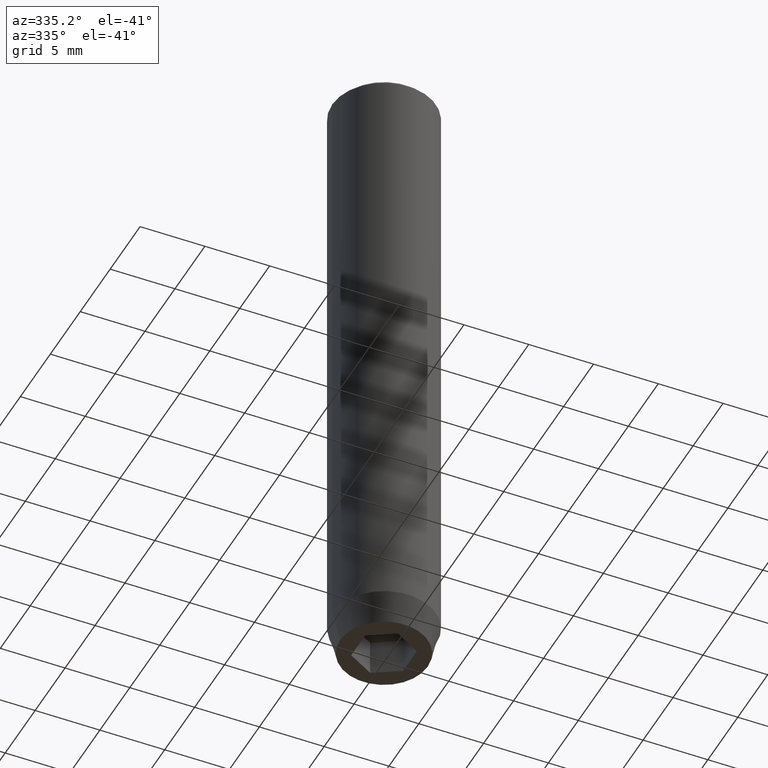
[diagram: clean part render]
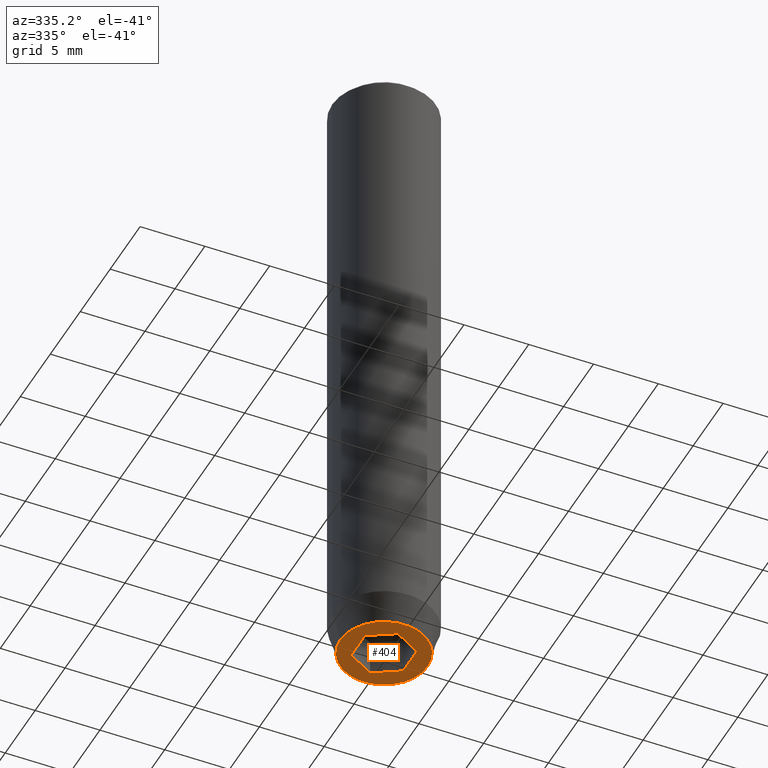
[diagram: same view with one face highlighted and labeled with its STEP entity id]
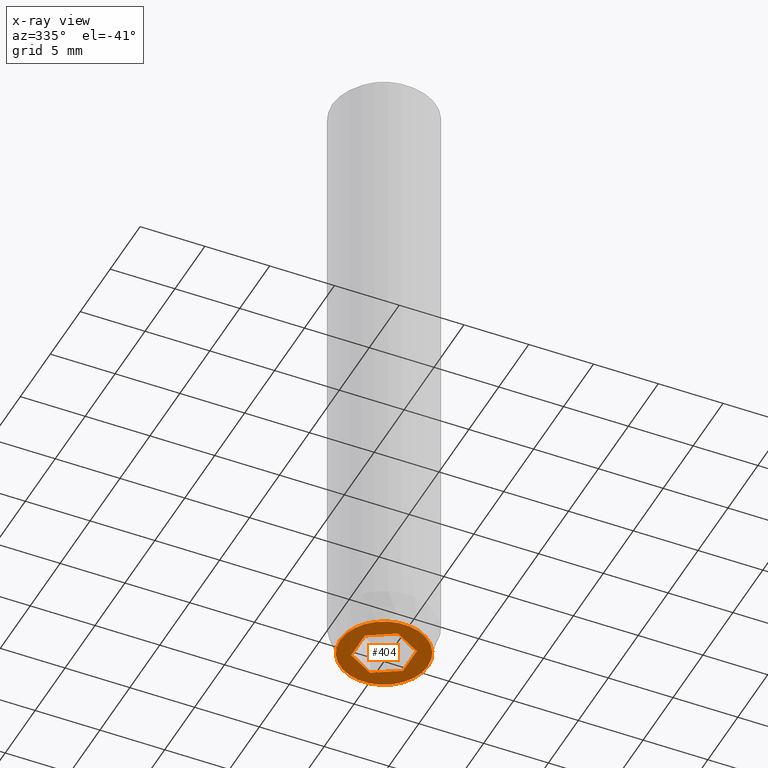
[diagram: x-ray of the same camera — body ghosted, the highlighted face saturated]
A machine part, auxiliary view. The second image highlights one B-rep face of the part: STEP entity #404.
The next image is the same camera in x-ray: the body ghosted, the highlighted face saturated — about 0% of this face is hidden behind the body in this view.
In plain terms, the highlighted planar face has unit normal (0, 0, -1).
Its self-contained STEP definition (entity closure, byte-faithful):
#4 = VECTOR ( 'NONE', #56, 1000.000000000000114 ) ;
#7 = VERTEX_POINT ( 'NONE', #245 ) ;
#13 = VERTEX_POINT ( 'NONE', #345 ) ;
#14 = CIRCLE ( 'NONE', #214, 3.383716857408417766 ) ;
#17 = DIRECTION ( 'NONE',  ( -1.000000000000000000, 0.000000000000000000, -0.000000000000000000 ) ) ;
#23 = ORIENTED_EDGE ( 'NONE', *, *, #143, .F. ) ;
#30 = VECTOR ( 'NONE', #527, 1000.000000000000000 ) ;
#31 = DIRECTION ( 'NONE',  ( -0.000000000000000000, -0.000000000000000000, 1.000000000000000000 ) ) ;
#34 = DIRECTION ( 'NONE',  ( -0.000000000000000000, -0.000000000000000000, 1.000000000000000000 ) ) ;
#39 = CARTESIAN_POINT ( 'NONE',  ( 2.000000000000000888, -1.154700538379252572, -50.00000000000000000 ) ) ;
#56 = DIRECTION ( 'NONE',  ( -0.8660254037844388186, -0.4999999999999996114, 0.000000000000000000 ) ) ;
#64 = CARTESIAN_POINT ( 'NONE',  ( 1.000000000000000444, 1.732050807568877637, -50.00000000000000000 ) ) ;
#66 = FACE_OUTER_BOUND ( 'NONE', #75, .T. ) ;
#71 = VERTEX_POINT ( 'NONE', #80 ) ;
#75 = EDGE_LOOP ( 'NONE', ( #561, #340 ) ) ;
#76 = CARTESIAN_POINT ( 'NONE',  ( -1.000000000000000222, -1.732050807568877637, -50.00000000000000000 ) ) ;
#80 = CARTESIAN_POINT ( 'NONE',  ( 2.168404344971008868E-16, -2.309401076758503812, -50.00000000000000000 ) ) ;
#97 = VERTEX_POINT ( 'NONE', #267 ) ;
#101 = CARTESIAN_POINT ( 'NONE',  ( -1.999999999999997780, 1.154700538379253238, -50.00000000000000000 ) ) ;
#102 = VERTEX_POINT ( 'NONE', #361 ) ;
#107 = AXIS2_PLACEMENT_3D ( 'NONE', #495, #31, #255 ) ;
#113 = FACE_BOUND ( 'NONE', #552, .T. ) ;
#116 = VECTOR ( 'NONE', #536, 1000.000000000000000 ) ;
#128 = CARTESIAN_POINT ( 'NONE',  ( 2.000000000000000888, 0.000000000000000000, -50.00000000000000000 ) ) ;
#143 = EDGE_CURVE ( 'NONE', #7, #480, #306, .T. ) ;
#144 = VECTOR ( 'NONE', #263, 1000.000000000000000 ) ;
#158 = CARTESIAN_POINT ( 'NONE',  ( 0.000000000000000000, 2.309401076758503812, -50.00000000000000000 ) ) ;
#167 = EDGE_CURVE ( 'NONE', #97, #102, #14, .T. ) ;
#178 = CIRCLE ( 'NONE', #107, 3.383716857408417766 ) ;
#182 = ORIENTED_EDGE ( 'NONE', *, *, #283, .F. ) ;
#206 = LINE ( 'NONE', #448, #116 ) ;
#214 = AXIS2_PLACEMENT_3D ( 'NONE', #538, #34, #398 ) ;
#226 = DIRECTION ( 'NONE',  ( 5.633679745264339711E-16, 1.000000000000000000, 0.000000000000000000 ) ) ;
#245 = CARTESIAN_POINT ( 'NONE',  ( 2.000000000000000888, 1.154700538379251462, -50.00000000000000000 ) ) ;
#249 = VECTOR ( 'NONE', #226, 1000.000000000000000 ) ;
#255 = DIRECTION ( 'NONE',  ( 1.000000000000000000, 0.000000000000000000, 0.000000000000000000 ) ) ;
#261 = DIRECTION ( 'NONE',  ( -0.8660254037844387076, 0.5000000000000001110, 0.000000000000000000 ) ) ;
#263 = DIRECTION ( 'NONE',  ( 0.000000000000000000, -1.000000000000000000, 0.000000000000000000 ) ) ;
#267 = CARTESIAN_POINT ( 'NONE',  ( -3.383716857408417766, 4.521222607617785469E-16, -50.00000000000000000 ) ) ;
#275 = EDGE_CURVE ( 'NONE', #13, #285, #369, .T. ) ;
#283 = EDGE_CURVE ( 'NONE', #480, #71, #406, .T. ) ;
#285 = VERTEX_POINT ( 'NONE', #101 ) ;
#287 = LINE ( 'NONE', #64, #30 ) ;
#306 = LINE ( 'NONE', #128, #144 ) ;
#319 = CARTESIAN_POINT ( 'NONE',  ( -1.999999999999998224, 1.126735949052866956E-15, -50.00000000000000000 ) ) ;
#336 = VECTOR ( 'NONE', #261, 999.9999999999998863 ) ;
#340 = ORIENTED_EDGE ( 'NONE', *, *, #167, .F. ) ;
#345 = CARTESIAN_POINT ( 'NONE',  ( -1.999999999999998668, -1.154700538379252572, -50.00000000000000000 ) ) ;
#358 = EDGE_CURVE ( 'NONE', #437, #7, #287, .T. ) ;
#361 = CARTESIAN_POINT ( 'NONE',  ( 3.383716857408417766, 0.000000000000000000, -50.00000000000000000 ) ) ;
#369 = LINE ( 'NONE', #319, #249 ) ;
#377 = DIRECTION ( 'NONE',  ( 0.000000000000000000, 0.000000000000000000, -1.000000000000000000 ) ) ;
#388 = PLANE ( 'NONE',  #530 ) ;
#398 = DIRECTION ( 'NONE',  ( 1.000000000000000000, 0.000000000000000000, 0.000000000000000000 ) ) ;
#404 = ADVANCED_FACE ( 'NONE', ( #113, #66 ), #388, .T. ) ;
#406 = LINE ( 'NONE', #466, #4 ) ;
#425 = ORIENTED_EDGE ( 'NONE', *, *, #509, .F. ) ;
#437 = VERTEX_POINT ( 'NONE', #158 ) ;
#448 = CARTESIAN_POINT ( 'NONE',  ( -1.000000000000000444, 1.732050807568877637, -50.00000000000000000 ) ) ;
#466 = CARTESIAN_POINT ( 'NONE',  ( 0.9999999999999997780, -1.732050807568878747, -50.00000000000000000 ) ) ;
#467 = ORIENTED_EDGE ( 'NONE', *, *, #275, .F. ) ;
#480 = VERTEX_POINT ( 'NONE', #39 ) ;
#495 = CARTESIAN_POINT ( 'NONE',  ( 0.000000000000000000, 0.000000000000000000, -50.00000000000000000 ) ) ;
#501 = EDGE_CURVE ( 'NONE', #102, #97, #178, .T. ) ;
#509 = EDGE_CURVE ( 'NONE', #285, #437, #206, .T. ) ;
#527 = DIRECTION ( 'NONE',  ( 0.8660254037844385966, -0.5000000000000001110, 0.000000000000000000 ) ) ;
#530 = AXIS2_PLACEMENT_3D ( 'NONE', #567, #377, #17 ) ;
#536 = DIRECTION ( 'NONE',  ( 0.8660254037844385966, 0.5000000000000001110, 0.000000000000000000 ) ) ;
#538 = CARTESIAN_POINT ( 'NONE',  ( 0.000000000000000000, 0.000000000000000000, -50.00000000000000000 ) ) ;
#540 = LINE ( 'NONE', #76, #336 ) ;
#552 = EDGE_LOOP ( 'NONE', ( #425, #467, #566, #182, #23, #587 ) ) ;
#561 = ORIENTED_EDGE ( 'NONE', *, *, #501, .F. ) ;
#566 = ORIENTED_EDGE ( 'NONE', *, *, #583, .F. ) ;
#567 = CARTESIAN_POINT ( 'NONE',  ( 0.000000000000000000, 3.383716857408417766, -50.00000000000000000 ) ) ;
#583 = EDGE_CURVE ( 'NONE', #71, #13, #540, .T. ) ;
#587 = ORIENTED_EDGE ( 'NONE', *, *, #358, .F. ) ;